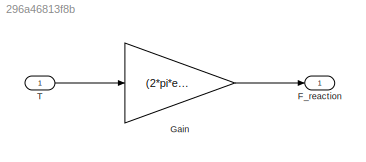
MODEL slx_296a46813f8b
KIND model
CONFIG AbsTol = auto
CONFIG EnableMultiTasking = off
CONFIG FixedStep = auto
CONFIG MaxStep = auto
CONFIG MinStep = auto
CONFIG RelTol = 1e-3
CONFIG SampleTimeConstraint = Unconstrained
CONFIG SolverName = VariableStepAuto
CONFIG StartTime = 0.0
CONFIG StopTime = 10.0
WORKSPACE source: mxarray member
WORKSPACE efficiency = 0.95
WORKSPACE p = 1
BLOCK [Outport] F_reaction
BLOCK [Gain] Gain
  Gain = (2*pi*efficiency)/p
BLOCK [Inport] T
LINE Gain:1 -> F_reaction:1
LINE T:1 -> Gain:1
